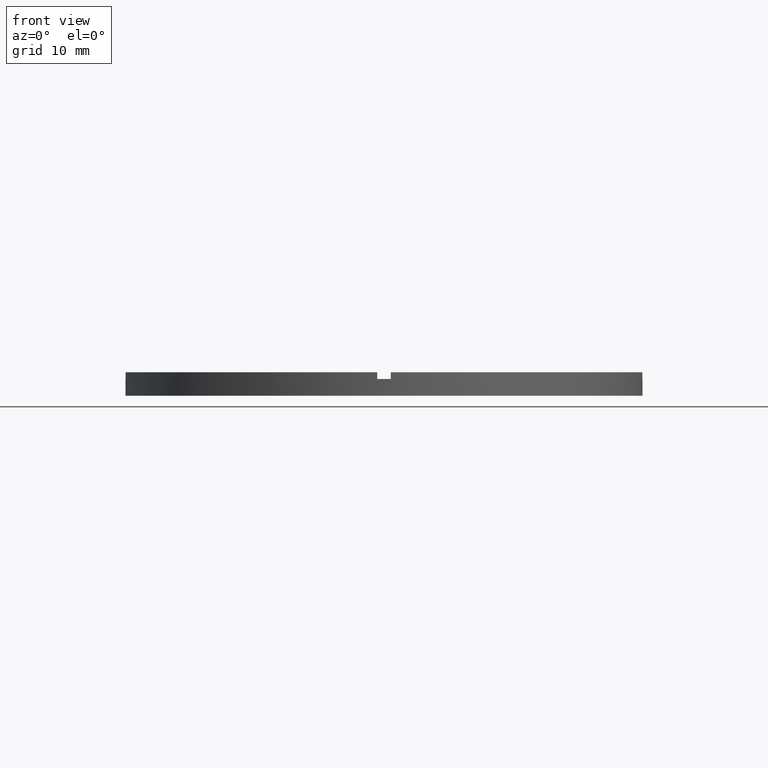
[diagram: clean part render]
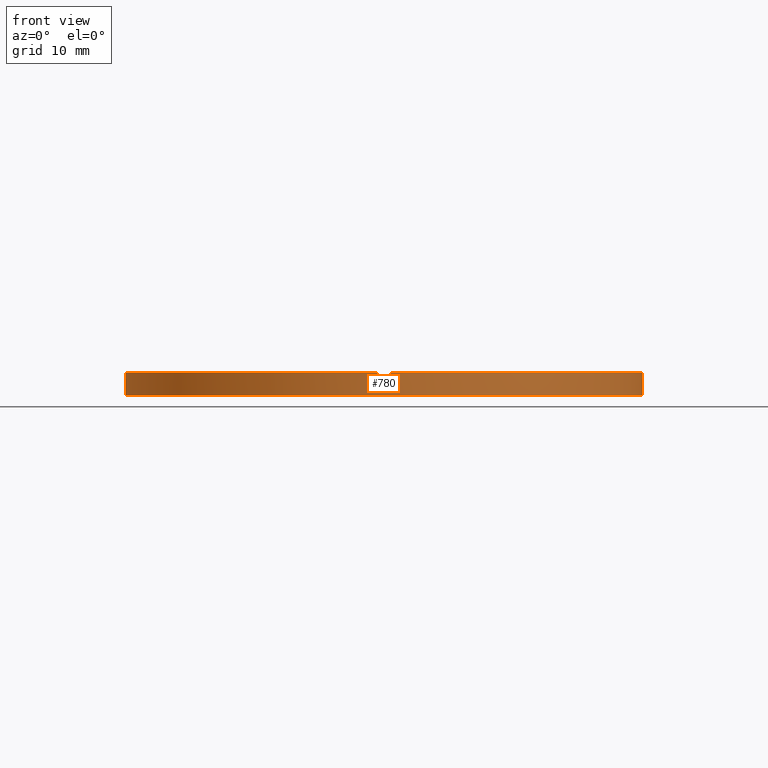
[diagram: same view with one face highlighted and labeled with its STEP entity id]
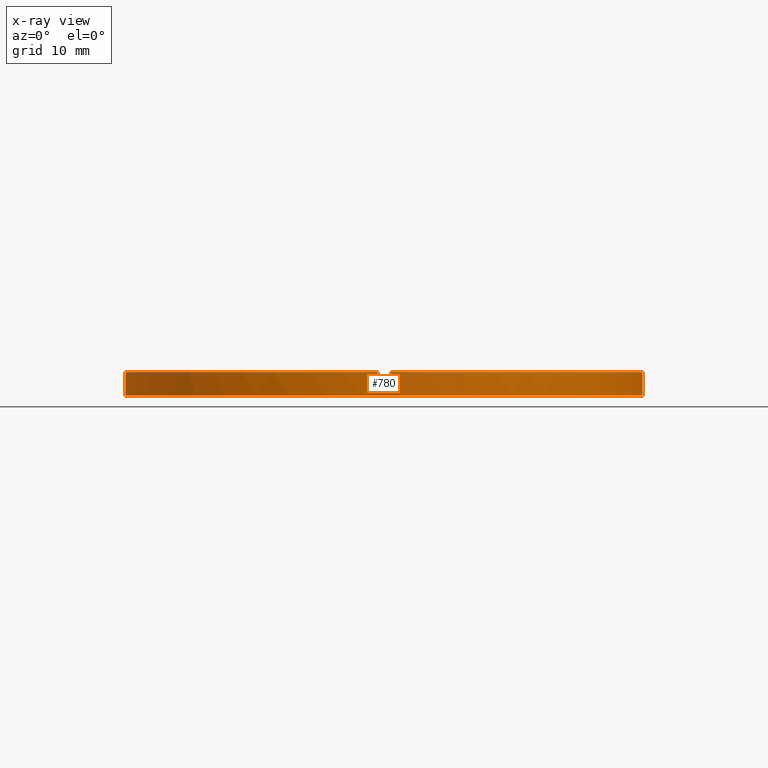
[diagram: x-ray of the same camera — body ghosted, the highlighted face saturated]
A machine part, front view. The second image highlights one B-rep face of the part: STEP entity #780.
The next image is the same camera in x-ray: the body ghosted, the highlighted face saturated — about 0% of this face is hidden behind the body in this view.
In plain terms, the highlighted cylindrical surface (partial cylindrical patch) has radius 38.5 mm, axis along (-0, -0, -1).
Its self-contained STEP definition (entity closure, byte-faithful):
#2 = EDGE_CURVE ( 'NONE', #715, #244, #297, .T. ) ;
#7 = EDGE_CURVE ( 'NONE', #715, #495, #549, .T. ) ;
#8 = ORIENTED_EDGE ( 'NONE', *, *, #578, .F. ) ;
#30 = CARTESIAN_POINT ( 'NONE',  ( -1.000000000000159650, -38.48701079585163143, 2.500000000000000000 ) ) ;
#31 = CARTESIAN_POINT ( 'NONE',  ( -38.48701079585163143, -1.000000000000027978, 2.500000000000000000 ) ) ;
#32 = VECTOR ( 'NONE', #645, 1000.000000000000000 ) ;
#37 = DIRECTION ( 'NONE',  ( -1.000000000000000000, 0.000000000000000000, 0.000000000000000000 ) ) ;
#40 = DIRECTION ( 'NONE',  ( 1.000000000000000000, 0.000000000000000000, 0.000000000000000000 ) ) ;
#46 = VECTOR ( 'NONE', #205, 1000.000000000000000 ) ;
#51 = CARTESIAN_POINT ( 'NONE',  ( 38.48701079585163143, -1.000000000000157208, 2.500000000000000000 ) ) ;
#86 = CIRCLE ( 'NONE', #119, 38.50000000000000000 ) ;
#91 = LINE ( 'NONE', #255, #591 ) ;
#119 = AXIS2_PLACEMENT_3D ( 'NONE', #623, #504, #376 ) ;
#130 = EDGE_CURVE ( 'NONE', #728, #495, #568, .T. ) ;
#135 = AXIS2_PLACEMENT_3D ( 'NONE', #390, #471, #212 ) ;
#145 = AXIS2_PLACEMENT_3D ( 'NONE', #449, #236, #572 ) ;
#150 = CARTESIAN_POINT ( 'NONE',  ( 0.000000000000000000, 0.000000000000000000, 3.500000000000000000 ) ) ;
#155 = AXIS2_PLACEMENT_3D ( 'NONE', #560, #631, #40 ) ;
#163 = EDGE_LOOP ( 'NONE', ( #752, #8, #469, #423, #691, #547, #331, #193, #196, #472, #324, #461 ) ) ;
#169 = EDGE_CURVE ( 'NONE', #702, #244, #309, .T. ) ;
#181 = CARTESIAN_POINT ( 'NONE',  ( 0.000000000000000000, 0.000000000000000000, 2.500000000000000000 ) ) ;
#193 = ORIENTED_EDGE ( 'NONE', *, *, #130, .F. ) ;
#196 = ORIENTED_EDGE ( 'NONE', *, *, #408, .T. ) ;
#205 = DIRECTION ( 'NONE',  ( -0.000000000000000000, -0.000000000000000000, -1.000000000000000000 ) ) ;
#207 = VERTEX_POINT ( 'NONE', #427 ) ;
#212 = DIRECTION ( 'NONE',  ( 1.000000000000000000, 0.000000000000000000, 0.000000000000000000 ) ) ;
#218 = VERTEX_POINT ( 'NONE', #31 ) ;
#236 = DIRECTION ( 'NONE',  ( 0.000000000000000000, 0.000000000000000000, 1.000000000000000000 ) ) ;
#244 = VERTEX_POINT ( 'NONE', #422 ) ;
#249 = VECTOR ( 'NONE', #312, 1000.000000000000000 ) ;
#253 = VECTOR ( 'NONE', #534, 1000.000000000000000 ) ;
#255 = CARTESIAN_POINT ( 'NONE',  ( 38.50000000000000000, 4.714890176717309515E-15, 3.500000000000000000 ) ) ;
#259 = CARTESIAN_POINT ( 'NONE',  ( -38.50000000000000000, 0.000000000000000000, 3.500000000000000000 ) ) ;
#261 = DIRECTION ( 'NONE',  ( 0.000000000000000000, 0.000000000000000000, 1.000000000000000000 ) ) ;
#276 = CARTESIAN_POINT ( 'NONE',  ( 0.9999999999998404610, -38.48701079585163853, 3.500000000000000000 ) ) ;
#292 = CARTESIAN_POINT ( 'NONE',  ( -38.50000000000000000, 0.000000000000000000, 2.500000000000000000 ) ) ;
#296 = DIRECTION ( 'NONE',  ( 1.000000000000000000, 0.000000000000000000, 0.000000000000000000 ) ) ;
#297 = CIRCLE ( 'NONE', #135, 38.50000000000000000 ) ;
#307 = AXIS2_PLACEMENT_3D ( 'NONE', #524, #774, #37 ) ;
#309 = LINE ( 'NONE', #276, #46 ) ;
#312 = DIRECTION ( 'NONE',  ( 0.000000000000000000, 0.000000000000000000, 1.000000000000000000 ) ) ;
#317 = VECTOR ( 'NONE', #557, 1000.000000000000000 ) ;
#318 = EDGE_CURVE ( 'NONE', #425, #714, #497, .T. ) ;
#321 = CYLINDRICAL_SURFACE ( 'NONE', #307, 38.50000000000000000 ) ;
#324 = ORIENTED_EDGE ( 'NONE', *, *, #606, .T. ) ;
#331 = ORIENTED_EDGE ( 'NONE', *, *, #7, .T. ) ;
#357 = LINE ( 'NONE', #259, #317 ) ;
#359 = CIRCLE ( 'NONE', #155, 38.50000000000000000 ) ;
#367 = AXIS2_PLACEMENT_3D ( 'NONE', #181, #261, #420 ) ;
#368 = CARTESIAN_POINT ( 'NONE',  ( -38.50000000000000000, 0.000000000000000000, 0.000000000000000000 ) ) ;
#372 = CARTESIAN_POINT ( 'NONE',  ( 38.48701079585163143, -1.000000000000157208, 3.500000000000000000 ) ) ;
#376 = DIRECTION ( 'NONE',  ( 1.000000000000000000, 0.000000000000000000, 0.000000000000000000 ) ) ;
#390 = CARTESIAN_POINT ( 'NONE',  ( 0.000000000000000000, 0.000000000000000000, 2.500000000000000000 ) ) ;
#394 = CARTESIAN_POINT ( 'NONE',  ( -38.48701079585163143, -1.000000000000027978, 3.500000000000000000 ) ) ;
#401 = CARTESIAN_POINT ( 'NONE',  ( 38.50000000000000000, 4.714890176717309515E-15, 0.000000000000000000 ) ) ;
#408 = EDGE_CURVE ( 'NONE', #728, #218, #737, .T. ) ;
#415 = VERTEX_POINT ( 'NONE', #368 ) ;
#420 = DIRECTION ( 'NONE',  ( 1.000000000000000000, 0.000000000000000000, 0.000000000000000000 ) ) ;
#422 = CARTESIAN_POINT ( 'NONE',  ( 0.9999999999998404610, -38.48701079585163853, 2.500000000000000000 ) ) ;
#423 = ORIENTED_EDGE ( 'NONE', *, *, #690, .F. ) ;
#425 = VERTEX_POINT ( 'NONE', #51 ) ;
#427 = CARTESIAN_POINT ( 'NONE',  ( 38.50000000000000000, 4.714890176717309515E-15, 2.500000000000000000 ) ) ;
#449 = CARTESIAN_POINT ( 'NONE',  ( 0.000000000000000000, 0.000000000000000000, 3.500000000000000000 ) ) ;
#452 = CARTESIAN_POINT ( 'NONE',  ( -1.000000000000159650, -38.48701079585163143, 3.500000000000000000 ) ) ;
#461 = ORIENTED_EDGE ( 'NONE', *, *, #689, .T. ) ;
#465 = VERTEX_POINT ( 'NONE', #401 ) ;
#469 = ORIENTED_EDGE ( 'NONE', *, *, #318, .T. ) ;
#471 = DIRECTION ( 'NONE',  ( -0.000000000000000000, 0.000000000000000000, 1.000000000000000000 ) ) ;
#472 = ORIENTED_EDGE ( 'NONE', *, *, #540, .F. ) ;
#495 = VERTEX_POINT ( 'NONE', #452 ) ;
#496 = DIRECTION ( 'NONE',  ( -0.000000000000000000, -0.000000000000000000, -1.000000000000000000 ) ) ;
#497 = LINE ( 'NONE', #372, #249 ) ;
#504 = DIRECTION ( 'NONE',  ( 0.000000000000000000, 0.000000000000000000, 1.000000000000000000 ) ) ;
#518 = CARTESIAN_POINT ( 'NONE',  ( 38.48701079585163143, -1.000000000000157208, 3.500000000000000000 ) ) ;
#524 = CARTESIAN_POINT ( 'NONE',  ( 0.000000000000000000, 0.000000000000000000, 3.500000000000000000 ) ) ;
#525 = CARTESIAN_POINT ( 'NONE',  ( -38.48701079585163143, -1.000000000000027978, 3.500000000000000000 ) ) ;
#534 = DIRECTION ( 'NONE',  ( -0.000000000000000000, -0.000000000000000000, -1.000000000000000000 ) ) ;
#540 = EDGE_CURVE ( 'NONE', #724, #218, #749, .T. ) ;
#547 = ORIENTED_EDGE ( 'NONE', *, *, #2, .F. ) ;
#549 = LINE ( 'NONE', #698, #32 ) ;
#555 = AXIS2_PLACEMENT_3D ( 'NONE', #150, #596, #296 ) ;
#557 = DIRECTION ( 'NONE',  ( -0.000000000000000000, -0.000000000000000000, -1.000000000000000000 ) ) ;
#560 = CARTESIAN_POINT ( 'NONE',  ( 0.000000000000000000, 0.000000000000000000, 0.000000000000000000 ) ) ;
#568 = CIRCLE ( 'NONE', #555, 38.50000000000000000 ) ;
#572 = DIRECTION ( 'NONE',  ( 1.000000000000000000, 0.000000000000000000, 0.000000000000000000 ) ) ;
#574 = FACE_OUTER_BOUND ( 'NONE', #163, .T. ) ;
#578 = EDGE_CURVE ( 'NONE', #425, #207, #86, .T. ) ;
#591 = VECTOR ( 'NONE', #496, 1000.000000000000000 ) ;
#596 = DIRECTION ( 'NONE',  ( 0.000000000000000000, 0.000000000000000000, 1.000000000000000000 ) ) ;
#606 = EDGE_CURVE ( 'NONE', #724, #415, #357, .T. ) ;
#614 = CIRCLE ( 'NONE', #145, 38.50000000000000000 ) ;
#623 = CARTESIAN_POINT ( 'NONE',  ( 0.000000000000000000, 0.000000000000000000, 2.500000000000000000 ) ) ;
#629 = CARTESIAN_POINT ( 'NONE',  ( 0.9999999999998404610, -38.48701079585163853, 3.500000000000000000 ) ) ;
#631 = DIRECTION ( 'NONE',  ( 0.000000000000000000, 0.000000000000000000, 1.000000000000000000 ) ) ;
#637 = EDGE_CURVE ( 'NONE', #207, #465, #91, .T. ) ;
#645 = DIRECTION ( 'NONE',  ( 0.000000000000000000, 0.000000000000000000, 1.000000000000000000 ) ) ;
#689 = EDGE_CURVE ( 'NONE', #415, #465, #359, .T. ) ;
#690 = EDGE_CURVE ( 'NONE', #702, #714, #614, .T. ) ;
#691 = ORIENTED_EDGE ( 'NONE', *, *, #169, .T. ) ;
#698 = CARTESIAN_POINT ( 'NONE',  ( -1.000000000000159650, -38.48701079585163143, 3.500000000000000000 ) ) ;
#702 = VERTEX_POINT ( 'NONE', #629 ) ;
#714 = VERTEX_POINT ( 'NONE', #518 ) ;
#715 = VERTEX_POINT ( 'NONE', #30 ) ;
#724 = VERTEX_POINT ( 'NONE', #292 ) ;
#728 = VERTEX_POINT ( 'NONE', #394 ) ;
#737 = LINE ( 'NONE', #525, #253 ) ;
#749 = CIRCLE ( 'NONE', #367, 38.50000000000000000 ) ;
#752 = ORIENTED_EDGE ( 'NONE', *, *, #637, .F. ) ;
#774 = DIRECTION ( 'NONE',  ( -0.000000000000000000, -0.000000000000000000, -1.000000000000000000 ) ) ;
#780 = ADVANCED_FACE ( 'NONE', ( #574 ), #321, .T. ) ;